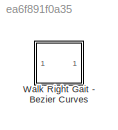
MODEL slx_ea6f891f0a35
KIND library
CONFIG AbsTol = auto
CONFIG EnableMultiTasking = off
CONFIG FixedStep = auto
CONFIG MaxStep = auto
CONFIG MinStep = auto
CONFIG RelTol = 1e-3
CONFIG SampleTimeConstraint = Unconstrained
CONFIG SolverName = VariableStepAuto
CONFIG StartTime = 0.0
CONFIG StopTime = 10.0
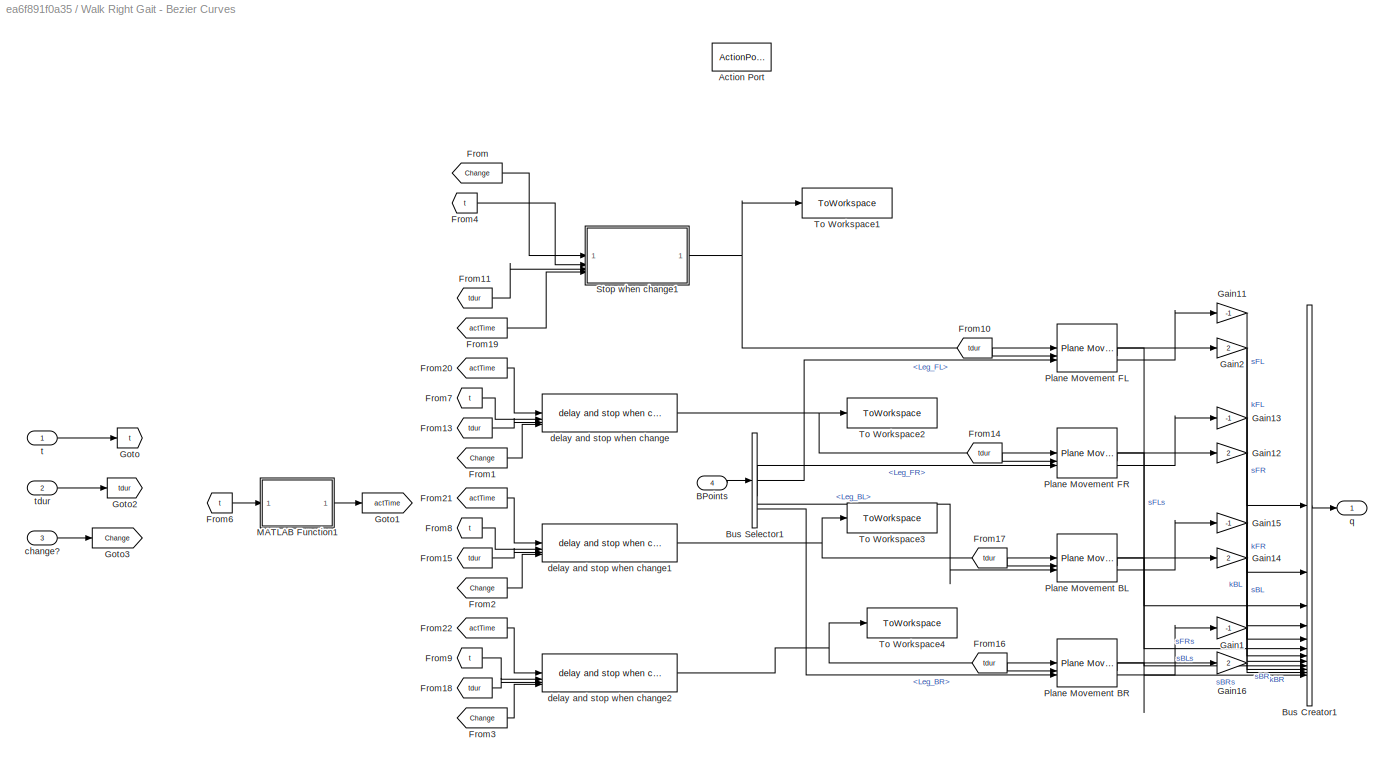
BLOCK [SubSystem] Walk Right Gait - Bezier Curves
BLOCK [ActionPort] Walk Right Gait - Bezier Curves/Action Port
  InitializeStates = reset
BLOCK [Inport] Walk Right Gait - Bezier Curves/BPoints
  Port = 4
BLOCK [BusCreator] Walk Right Gait - Bezier Curves/Bus Creator1
  DisplayOption = bar
  InheritFromInputs = on
  Inputs = 12
BLOCK [BusSelector] Walk Right Gait - Bezier Curves/Bus Selector1
  OutputSignals = Leg_FL,Leg_FR,Leg_BL,Leg_BR
BLOCK [From] Walk Right Gait - Bezier Curves/From
  GotoTag = Change
BLOCK [From] Walk Right Gait - Bezier Curves/From1
  GotoTag = Change
BLOCK [From] Walk Right Gait - Bezier Curves/From10
  GotoTag = tdur
BLOCK [From] Walk Right Gait - Bezier Curves/From11
  GotoTag = tdur
BLOCK [From] Walk Right Gait - Bezier Curves/From13
  GotoTag = tdur
BLOCK [From] Walk Right Gait - Bezier Curves/From14
  GotoTag = tdur
BLOCK [From] Walk Right Gait - Bezier Curves/From15
  GotoTag = tdur
BLOCK [From] Walk Right Gait - Bezier Curves/From16
  GotoTag = tdur
BLOCK [From] Walk Right Gait - Bezier Curves/From17
  GotoTag = tdur
BLOCK [From] Walk Right Gait - Bezier Curves/From18
  GotoTag = tdur
BLOCK [From] Walk Right Gait - Bezier Curves/From19
  GotoTag = actTime
BLOCK [From] Walk Right Gait - Bezier Curves/From2
  GotoTag = Change
BLOCK [From] Walk Right Gait - Bezier Curves/From20
  GotoTag = actTime
BLOCK [From] Walk Right Gait - Bezier Curves/From21
  GotoTag = actTime
BLOCK [From] Walk Right Gait - Bezier Curves/From22
  GotoTag = actTime
BLOCK [From] Walk Right Gait - Bezier Curves/From3
  GotoTag = Change
BLOCK [From] Walk Right Gait - Bezier Curves/From4
  GotoTag = t
BLOCK [From] Walk Right Gait - Bezier Curves/From6
  GotoTag = t
BLOCK [From] Walk Right Gait - Bezier Curves/From7
  GotoTag = t
BLOCK [From] Walk Right Gait - Bezier Curves/From8
  GotoTag = t
BLOCK [From] Walk Right Gait - Bezier Curves/From9
  GotoTag = t
BLOCK [Gain] Walk Right Gait - Bezier Curves/Gain1
  Gain = -1
BLOCK [Gain] Walk Right Gait - Bezier Curves/Gain11
  Gain = -1
BLOCK [Gain] Walk Right Gait - Bezier Curves/Gain12
  Gain = 2
BLOCK [Gain] Walk Right Gait - Bezier Curves/Gain13
  Gain = -1
BLOCK [Gain] Walk Right Gait - Bezier Curves/Gain14
  Gain = 2
BLOCK [Gain] Walk Right Gait - Bezier Curves/Gain15
  Gain = -1
BLOCK [Gain] Walk Right Gait - Bezier Curves/Gain16
  Gain = 2
BLOCK [Gain] Walk Right Gait - Bezier Curves/Gain2
  Gain = 2
BLOCK [Goto] Walk Right Gait - Bezier Curves/Goto
  GotoTag = t
BLOCK [Goto] Walk Right Gait - Bezier Curves/Goto1
  GotoTag = actTime
BLOCK [Goto] Walk Right Gait - Bezier Curves/Goto2
  GotoTag = tdur
BLOCK [Goto] Walk Right Gait - Bezier Curves/Goto3
  GotoTag = Change
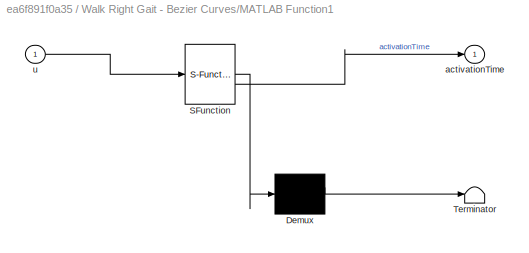
BLOCK [SubSystem] Walk Right Gait - Bezier Curves/MATLAB Function1
  ErrorFcn = Stateflow.Translate.translate
  PermitHierarchicalResolution = ExplicitOnly
  SFBlockType = MATLAB Function
  TreatAsAtomicUnit = on
BLOCK [Demux] Walk Right Gait - Bezier Curves/MATLAB Function1/ Demux 
  Outputs = 1
BLOCK [S-Function] Walk Right Gait - Bezier Curves/MATLAB Function1/ SFunction 
  EnableBusSupport = off
  FunctionName = sf_sfun
  PortCounts = [1 2]
  SFcnIsStateOwnerBlock = off
  SFunctionDeploymentMode = off
  Tag = Stateflow S-Function 82
BLOCK [Terminator] Walk Right Gait - Bezier Curves/MATLAB Function1/ Terminator 
BLOCK [Outport] Walk Right Gait - Bezier Curves/MATLAB Function1/activationTime
BLOCK [Inport] Walk Right Gait - Bezier Curves/MATLAB Function1/u
BLOCK [Reference] Walk Right Gait - Bezier Curves/Plane Movement BL  REF=Plane_Movement_walk_right/Plane Movement
  SourceBlock = Plane_Movement_walk_right/Plane Movement
  SourceType = SubSystem
BLOCK [Reference] Walk Right Gait - Bezier Curves/Plane Movement BR  REF=Plane_Movement_walk_right/Plane Movement
  SourceBlock = Plane_Movement_walk_right/Plane Movement
  SourceType = SubSystem
BLOCK [Reference] Walk Right Gait - Bezier Curves/Plane Movement FL  REF=Plane_Movement_walk_right/Plane Movement
  SourceBlock = Plane_Movement_walk_right/Plane Movement
  SourceType = SubSystem
BLOCK [Reference] Walk Right Gait - Bezier Curves/Plane Movement FR  REF=Plane_Movement_walk_right/Plane Movement
  SourceBlock = Plane_Movement_walk_right/Plane Movement
  SourceType = SubSystem
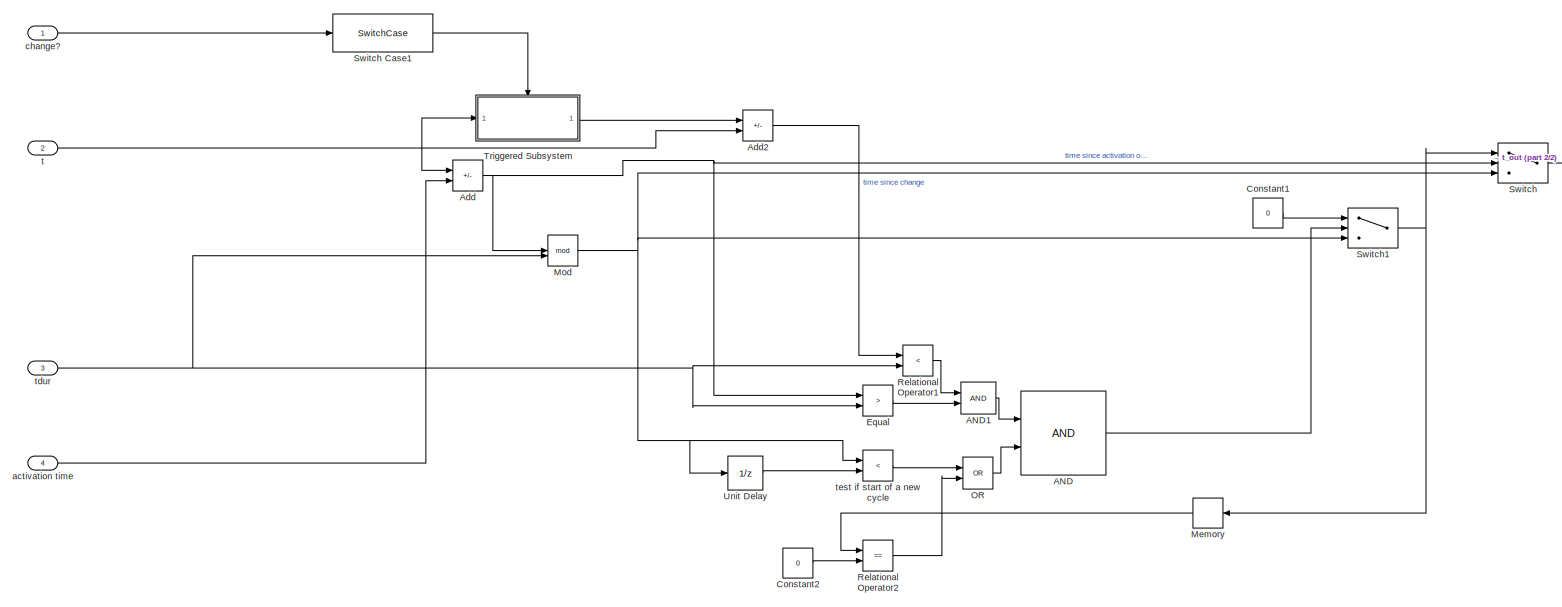
[diagram: Walk Right Gait - Bezier Curves/Stop when change1 - part 1/2, most of the canvas]
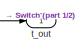
[diagram: Walk Right Gait - Bezier Curves/Stop when change1 - part 2/2, top right region]
BLOCK [SubSystem] Walk Right Gait - Bezier Curves/Stop when change1
BLOCK [Logic] Walk Right Gait - Bezier Curves/Stop when change1/AND
  AllPortsSameDT = off
  IconShape = distinctive
  OutDataTypeStr = boolean
BLOCK [Logic] Walk Right Gait - Bezier Curves/Stop when change1/AND1
  AllPortsSameDT = off
  IconShape = distinctive
  OutDataTypeStr = boolean
BLOCK [Sum] Walk Right Gait - Bezier Curves/Stop when change1/Add
  IconShape = rectangular
  Inputs = +-
BLOCK [Sum] Walk Right Gait - Bezier Curves/Stop when change1/Add2
  IconShape = rectangular
  Inputs = -+
BLOCK [Constant] Walk Right Gait - Bezier Curves/Stop when change1/Constant1
  Value = 0
BLOCK [Constant] Walk Right Gait - Bezier Curves/Stop when change1/Constant2
  Value = 0
BLOCK [RelationalOperator] Walk Right Gait - Bezier Curves/Stop when change1/Equal
  InputSameDT = off
  Operator = >
  OutDataTypeStr = boolean
  RndMeth = Simplest
BLOCK [Memory] Walk Right Gait - Bezier Curves/Stop when change1/Memory
  NameLocation = top
BLOCK [Math] Walk Right Gait - Bezier Curves/Stop when change1/Mod
  Operator = mod
BLOCK [Logic] Walk Right Gait - Bezier Curves/Stop when change1/OR
  AllPortsSameDT = off
  IconShape = distinctive
  Operator = OR
  OutDataTypeStr = boolean
BLOCK [RelationalOperator] Walk Right Gait - Bezier Curves/Stop when change1/Relational Operator1
  InputSameDT = off
  Operator = <
  OutDataTypeStr = boolean
  RndMeth = Simplest
BLOCK [RelationalOperator] Walk Right Gait - Bezier Curves/Stop when change1/Relational Operator2
  InputSameDT = off
  Operator = ==
  OutDataTypeStr = boolean
  RndMeth = Simplest
BLOCK [Switch] Walk Right Gait - Bezier Curves/Stop when change1/Switch
  Criteria = u2 > Threshold
  InputSameDT = off
  SaturateOnIntegerOverflow = off
BLOCK [SwitchCase] Walk Right Gait - Bezier Curves/Stop when change1/Switch Case1
  ShowDefaultCase = off
BLOCK [Switch] Walk Right Gait - Bezier Curves/Stop when change1/Switch1
  Criteria = u2 > Threshold
  InputSameDT = off
  SaturateOnIntegerOverflow = off
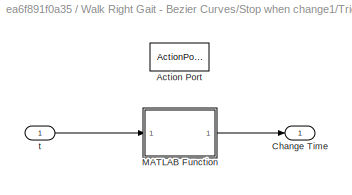
BLOCK [SubSystem] Walk Right Gait - Bezier Curves/Stop when change1/Triggered Subsystem
  TreatAsAtomicUnit = on
BLOCK [ActionPort] Walk Right Gait - Bezier Curves/Stop when change1/Triggered Subsystem/Action Port
  ActionPortLabel = case [ 1 ]:
  InitializeStates = reset
BLOCK [Outport] Walk Right Gait - Bezier Curves/Stop when change1/Triggered Subsystem/Change Time
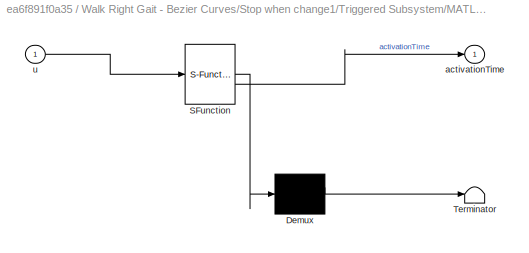
BLOCK [SubSystem] Walk Right Gait - Bezier Curves/Stop when change1/Triggered Subsystem/MATLAB Function
  ErrorFcn = Stateflow.Translate.translate
  PermitHierarchicalResolution = ExplicitOnly
  SFBlockType = MATLAB Function
  TreatAsAtomicUnit = on
BLOCK [Demux] Walk Right Gait - Bezier Curves/Stop when change1/Triggered Subsystem/MATLAB Function/ Demux 
  Outputs = 1
BLOCK [S-Function] Walk Right Gait - Bezier Curves/Stop when change1/Triggered Subsystem/MATLAB Function/ SFunction 
  EnableBusSupport = off
  FunctionName = sf_sfun
  PortCounts = [1 2]
  SFcnIsStateOwnerBlock = off
  SFunctionDeploymentMode = off
  Tag = Stateflow S-Function 114
BLOCK [Terminator] Walk Right Gait - Bezier Curves/Stop when change1/Triggered Subsystem/MATLAB Function/ Terminator 
BLOCK [Outport] Walk Right Gait - Bezier Curves/Stop when change1/Triggered Subsystem/MATLAB Function/activationTime
BLOCK [Inport] Walk Right Gait - Bezier Curves/Stop when change1/Triggered Subsystem/MATLAB Function/u
BLOCK [Inport] Walk Right Gait - Bezier Curves/Stop when change1/Triggered Subsystem/t
BLOCK [UnitDelay] Walk Right Gait - Bezier Curves/Stop when change1/Unit Delay
  HasFrameUpgradeWarning = on
  SampleTime = -1
BLOCK [Inport] Walk Right Gait - Bezier Curves/Stop when change1/activation time
  Port = 4
BLOCK [Inport] Walk Right Gait - Bezier Curves/Stop when change1/change?
BLOCK [Inport] Walk Right Gait - Bezier Curves/Stop when change1/t
  Port = 2
BLOCK [Outport] Walk Right Gait - Bezier Curves/Stop when change1/t_out
BLOCK [Inport] Walk Right Gait - Bezier Curves/Stop when change1/tdur
  Port = 3
BLOCK [RelationalOperator] Walk Right Gait - Bezier Curves/Stop when change1/test if start of a new cycle
  InputSameDT = off
  Operator = <
  OutDataTypeStr = boolean
  RndMeth = Simplest
BLOCK [ToWorkspace] Walk Right Gait - Bezier Curves/To Workspace1
  Commented = on
  FixptAsFi = on
  MaxDataPoints = inf
  SampleTime = -1
  SaveFormat = Structure With Time
  VariableName = t_FL
BLOCK [ToWorkspace] Walk Right Gait - Bezier Curves/To Workspace2
  Commented = on
  FixptAsFi = on
  MaxDataPoints = inf
  SampleTime = -1
  SaveFormat = Structure
  VariableName = t_FR
BLOCK [ToWorkspace] Walk Right Gait - Bezier Curves/To Workspace3
  Commented = on
  FixptAsFi = on
  MaxDataPoints = inf
  SampleTime = -1
  SaveFormat = Structure
  VariableName = t_BL
BLOCK [ToWorkspace] Walk Right Gait - Bezier Curves/To Workspace4
  Commented = on
  FixptAsFi = on
  MaxDataPoints = inf
  SampleTime = -1
  SaveFormat = Structure
  VariableName = t_BR
BLOCK [Inport] Walk Right Gait - Bezier Curves/change?
  Port = 3
BLOCK [Reference] Walk Right Gait - Bezier Curves/delay and stop when change  REF=delay_and_stop_when_change/delay and stop when change  (lib defined in slx_273259b1e6f6)
  SourceBlock = delay_and_stop_when_change/delay and stop when change
BLOCK [Reference] Walk Right Gait - Bezier Curves/delay and stop when change1  REF=delay_and_stop_when_change/delay and stop when change  (lib defined in slx_273259b1e6f6)
  SourceBlock = delay_and_stop_when_change/delay and stop when change
BLOCK [Reference] Walk Right Gait - Bezier Curves/delay and stop when change2  REF=delay_and_stop_when_change/delay and stop when change  (lib defined in slx_273259b1e6f6)
  SourceBlock = delay_and_stop_when_change/delay and stop when change
BLOCK [Outport] Walk Right Gait - Bezier Curves/q
BLOCK [Inport] Walk Right Gait - Bezier Curves/t
BLOCK [Inport] Walk Right Gait - Bezier Curves/tdur
  Port = 2
LINE Walk Right Gait - Bezier Curves/BPoints:1 -> Walk Right Gait - Bezier Curves/Bus Selector1:1
LINE Walk Right Gait - Bezier Curves/Bus Creator1:1 -> Walk Right Gait - Bezier Curves/q:1
LINE Walk Right Gait - Bezier Curves/Bus Selector1:1 -> Walk Right Gait - Bezier Curves/Plane Movement FL:3
LINE Walk Right Gait - Bezier Curves/Bus Selector1:2 -> Walk Right Gait - Bezier Curves/Plane Movement FR:3
LINE Walk Right Gait - Bezier Curves/Bus Selector1:3 -> Walk Right Gait - Bezier Curves/Plane Movement BL:3
LINE Walk Right Gait - Bezier Curves/Bus Selector1:4 -> Walk Right Gait - Bezier Curves/Plane Movement BR:3
LINE Walk Right Gait - Bezier Curves/From10:1 -> Walk Right Gait - Bezier Curves/Plane Movement FL:2
LINE Walk Right Gait - Bezier Curves/From11:1 -> Walk Right Gait - Bezier Curves/Stop when change1:3
LINE Walk Right Gait - Bezier Curves/From13:1 -> Walk Right Gait - Bezier Curves/delay and stop when change:3
LINE Walk Right Gait - Bezier Curves/From14:1 -> Walk Right Gait - Bezier Curves/Plane Movement FR:2
LINE Walk Right Gait - Bezier Curves/From15:1 -> Walk Right Gait - Bezier Curves/delay and stop when change1:3
LINE Walk Right Gait - Bezier Curves/From16:1 -> Walk Right Gait - Bezier Curves/Plane Movement BR:2
LINE Walk Right Gait - Bezier Curves/From17:1 -> Walk Right Gait - Bezier Curves/Plane Movement BL:2
LINE Walk Right Gait - Bezier Curves/From18:1 -> Walk Right Gait - Bezier Curves/delay and stop when change2:3
LINE Walk Right Gait - Bezier Curves/From19:1 -> Walk Right Gait - Bezier Curves/Stop when change1:4
LINE Walk Right Gait - Bezier Curves/From1:1 -> Walk Right Gait - Bezier Curves/delay and stop when change:4
LINE Walk Right Gait - Bezier Curves/From20:1 -> Walk Right Gait - Bezier Curves/delay and stop when change:1
LINE Walk Right Gait - Bezier Curves/From21:1 -> Walk Right Gait - Bezier Curves/delay and stop when change1:1
LINE Walk Right Gait - Bezier Curves/From22:1 -> Walk Right Gait - Bezier Curves/delay and stop when change2:1
LINE Walk Right Gait - Bezier Curves/From2:1 -> Walk Right Gait - Bezier Curves/delay and stop when change1:4
LINE Walk Right Gait - Bezier Curves/From3:1 -> Walk Right Gait - Bezier Curves/delay and stop when change2:4
LINE Walk Right Gait - Bezier Curves/From4:1 -> Walk Right Gait - Bezier Curves/Stop when change1:2
LINE Walk Right Gait - Bezier Curves/From6:1 -> Walk Right Gait - Bezier Curves/MATLAB Function1:1
LINE Walk Right Gait - Bezier Curves/From7:1 -> Walk Right Gait - Bezier Curves/delay and stop when change:2
LINE Walk Right Gait - Bezier Curves/From8:1 -> Walk Right Gait - Bezier Curves/delay and stop when change1:2
LINE Walk Right Gait - Bezier Curves/From9:1 -> Walk Right Gait - Bezier Curves/delay and stop when change2:2
LINE Walk Right Gait - Bezier Curves/From:1 -> Walk Right Gait - Bezier Curves/Stop when change1:1
LINE Walk Right Gait - Bezier Curves/Gain11:1 -> Walk Right Gait - Bezier Curves/Bus Creator1:1
LINE Walk Right Gait - Bezier Curves/Gain12:1 -> Walk Right Gait - Bezier Curves/Bus Creator1:5
LINE Walk Right Gait - Bezier Curves/Gain13:1 -> Walk Right Gait - Bezier Curves/Bus Creator1:4
LINE Walk Right Gait - Bezier Curves/Gain14:1 -> Walk Right Gait - Bezier Curves/Bus Creator1:8
LINE Walk Right Gait - Bezier Curves/Gain15:1 -> Walk Right Gait - Bezier Curves/Bus Creator1:7
LINE Walk Right Gait - Bezier Curves/Gain16:1 -> Walk Right Gait - Bezier Curves/Bus Creator1:11
LINE Walk Right Gait - Bezier Curves/Gain1:1 -> Walk Right Gait - Bezier Curves/Bus Creator1:10
LINE Walk Right Gait - Bezier Curves/Gain2:1 -> Walk Right Gait - Bezier Curves/Bus Creator1:2
LINE Walk Right Gait - Bezier Curves/MATLAB Function1:1 -> Walk Right Gait - Bezier Curves/Goto1:1
LINE Walk Right Gait - Bezier Curves/Plane Movement BL:1 -> Walk Right Gait - Bezier Curves/Bus Creator1:9
LINE Walk Right Gait - Bezier Curves/Plane Movement BL:2 -> Walk Right Gait - Bezier Curves/Gain14:1
LINE Walk Right Gait - Bezier Curves/Plane Movement BL:3 -> Walk Right Gait - Bezier Curves/Gain15:1
LINE Walk Right Gait - Bezier Curves/Plane Movement BR:1 -> Walk Right Gait - Bezier Curves/Bus Creator1:12
LINE Walk Right Gait - Bezier Curves/Plane Movement BR:2 -> Walk Right Gait - Bezier Curves/Gain16:1
LINE Walk Right Gait - Bezier Curves/Plane Movement BR:3 -> Walk Right Gait - Bezier Curves/Gain1:1
LINE Walk Right Gait - Bezier Curves/Plane Movement FL:1 -> Walk Right Gait - Bezier Curves/Bus Creator1:3
LINE Walk Right Gait - Bezier Curves/Plane Movement FL:2 -> Walk Right Gait - Bezier Curves/Gain2:1
LINE Walk Right Gait - Bezier Curves/Plane Movement FL:3 -> Walk Right Gait - Bezier Curves/Gain11:1
LINE Walk Right Gait - Bezier Curves/Plane Movement FR:1 -> Walk Right Gait - Bezier Curves/Bus Creator1:6
LINE Walk Right Gait - Bezier Curves/Plane Movement FR:2 -> Walk Right Gait - Bezier Curves/Gain12:1
LINE Walk Right Gait - Bezier Curves/Plane Movement FR:3 -> Walk Right Gait - Bezier Curves/Gain13:1
LINE Walk Right Gait - Bezier Curves/Stop when change1/AND1:1 -> Walk Right Gait - Bezier Curves/Stop when change1/AND:1
LINE Walk Right Gait - Bezier Curves/Stop when change1/AND:1 -> Walk Right Gait - Bezier Curves/Stop when change1/Switch1:2
LINE Walk Right Gait - Bezier Curves/Stop when change1/Add2:1 -> Walk Right Gait - Bezier Curves/Stop when change1/Relational Operator1:1
NET Walk Right Gait - Bezier Curves/Stop when change1/Add:1 -> Walk Right Gait - Bezier Curves/Stop when change1/Equal:1, Walk Right Gait - Bezier Curves/Stop when change1/Mod:1, Walk Right Gait - Bezier Curves/Stop when change1/Switch:2
LINE Walk Right Gait - Bezier Curves/Stop when change1/Constant1:1 -> Walk Right Gait - Bezier Curves/Stop when change1/Switch1:1
LINE Walk Right Gait - Bezier Curves/Stop when change1/Constant2:1 -> Walk Right Gait - Bezier Curves/Stop when change1/Relational Operator2:2
LINE Walk Right Gait - Bezier Curves/Stop when change1/Equal:1 -> Walk Right Gait - Bezier Curves/Stop when change1/AND1:2
LINE Walk Right Gait - Bezier Curves/Stop when change1/Memory:1 -> Walk Right Gait - Bezier Curves/Stop when change1/Relational Operator2:1
NET Walk Right Gait - Bezier Curves/Stop when change1/Mod:1 -> Walk Right Gait - Bezier Curves/Stop when change1/Switch1:3, Walk Right Gait - Bezier Curves/Stop when change1/Switch:3, Walk Right Gait - Bezier Curves/Stop when change1/Unit Delay:1, Walk Right Gait - Bezier Curves/Stop when change1/test if start of a new cycle:1
LINE Walk Right Gait - Bezier Curves/Stop when change1/OR:1 -> Walk Right Gait - Bezier Curves/Stop when change1/AND:2
LINE Walk Right Gait - Bezier Curves/Stop when change1/Relational Operator1:1 -> Walk Right Gait - Bezier Curves/Stop when change1/AND1:1
LINE Walk Right Gait - Bezier Curves/Stop when change1/Relational Operator2:1 -> Walk Right Gait - Bezier Curves/Stop when change1/OR:2
LINE Walk Right Gait - Bezier Curves/Stop when change1/Switch Case1:1 -> Walk Right Gait - Bezier Curves/Stop when change1/Triggered Subsystem:ifaction
NET Walk Right Gait - Bezier Curves/Stop when change1/Switch1:1 -> Walk Right Gait - Bezier Curves/Stop when change1/Memory:1, Walk Right Gait - Bezier Curves/Stop when change1/Switch:1
LINE Walk Right Gait - Bezier Curves/Stop when change1/Switch:1 -> Walk Right Gait - Bezier Curves/Stop when change1/t_out:1
LINE Walk Right Gait - Bezier Curves/Stop when change1/Triggered Subsystem/MATLAB Function:1 -> Walk Right Gait - Bezier Curves/Stop when change1/Triggered Subsystem/Change Time:1
LINE Walk Right Gait - Bezier Curves/Stop when change1/Triggered Subsystem/t:1 -> Walk Right Gait - Bezier Curves/Stop when change1/Triggered Subsystem/MATLAB Function:1
LINE Walk Right Gait - Bezier Curves/Stop when change1/Triggered Subsystem:1 -> Walk Right Gait - Bezier Curves/Stop when change1/Add2:1
LINE Walk Right Gait - Bezier Curves/Stop when change1/Unit Delay:1 -> Walk Right Gait - Bezier Curves/Stop when change1/test if start of a new cycle:2
LINE Walk Right Gait - Bezier Curves/Stop when change1/activation time:1 -> Walk Right Gait - Bezier Curves/Stop when change1/Add:2
LINE Walk Right Gait - Bezier Curves/Stop when change1/change?:1 -> Walk Right Gait - Bezier Curves/Stop when change1/Switch Case1:1
NET Walk Right Gait - Bezier Curves/Stop when change1/t:1 -> Walk Right Gait - Bezier Curves/Stop when change1/Add2:2, Walk Right Gait - Bezier Curves/Stop when change1/Add:1, Walk Right Gait - Bezier Curves/Stop when change1/Triggered Subsystem:1
NET Walk Right Gait - Bezier Curves/Stop when change1/tdur:1 -> Walk Right Gait - Bezier Curves/Stop when change1/Equal:2, Walk Right Gait - Bezier Curves/Stop when change1/Mod:2, Walk Right Gait - Bezier Curves/Stop when change1/Relational Operator1:2
LINE Walk Right Gait - Bezier Curves/Stop when change1/test if start of a new cycle:1 -> Walk Right Gait - Bezier Curves/Stop when change1/OR:1
NET Walk Right Gait - Bezier Curves/Stop when change1:1 -> Walk Right Gait - Bezier Curves/Plane Movement FL:1, Walk Right Gait - Bezier Curves/To Workspace1:1
LINE Walk Right Gait - Bezier Curves/change?:1 -> Walk Right Gait - Bezier Curves/Goto3:1
NET Walk Right Gait - Bezier Curves/delay and stop when change1:1 -> Walk Right Gait - Bezier Curves/Plane Movement BL:1, Walk Right Gait - Bezier Curves/To Workspace3:1
NET Walk Right Gait - Bezier Curves/delay and stop when change2:1 -> Walk Right Gait - Bezier Curves/Plane Movement BR:1, Walk Right Gait - Bezier Curves/To Workspace4:1
NET Walk Right Gait - Bezier Curves/delay and stop when change:1 -> Walk Right Gait - Bezier Curves/Plane Movement FR:1, Walk Right Gait - Bezier Curves/To Workspace2:1
LINE Walk Right Gait - Bezier Curves/t:1 -> Walk Right Gait - Bezier Curves/Goto:1
LINE Walk Right Gait - Bezier Curves/tdur:1 -> Walk Right Gait - Bezier Curves/Goto2:1
note: NET lines group one-source signal fan-out (src -> all destinations, sorted); 1:1 wires keep LINE
CHART Walk Right Gait - Bezier Curves/Stop when change1/Triggered
Subsystem/MATLAB Function states=1 transitions=1
  STATE_LABEL 'eML_blk_kernel()'
  STATE_LABEL 'SCRIPT:\nfunction activationTime = getActivationTime(u)\n    persistent t_start\n    if isempty(t_start)\n        t_start = u;\n    end\n    activationTime = t_start;\nend'
CHART Walk Right Gait - Bezier Curves/MATLAB Function1 states=1 transitions=1
  STATE_LABEL 'eML_blk_kernel()'
  STATE_LABEL 'SCRIPT:\nfunction activationTime = getActivationTime(u)\n    persistent t_start\n    if isempty(t_start)\n        t_start = u;\n    end\n    activationTime = t_start;\nend'
CHART  states=0 transitions=0
CHART  states=0 transitions=0
